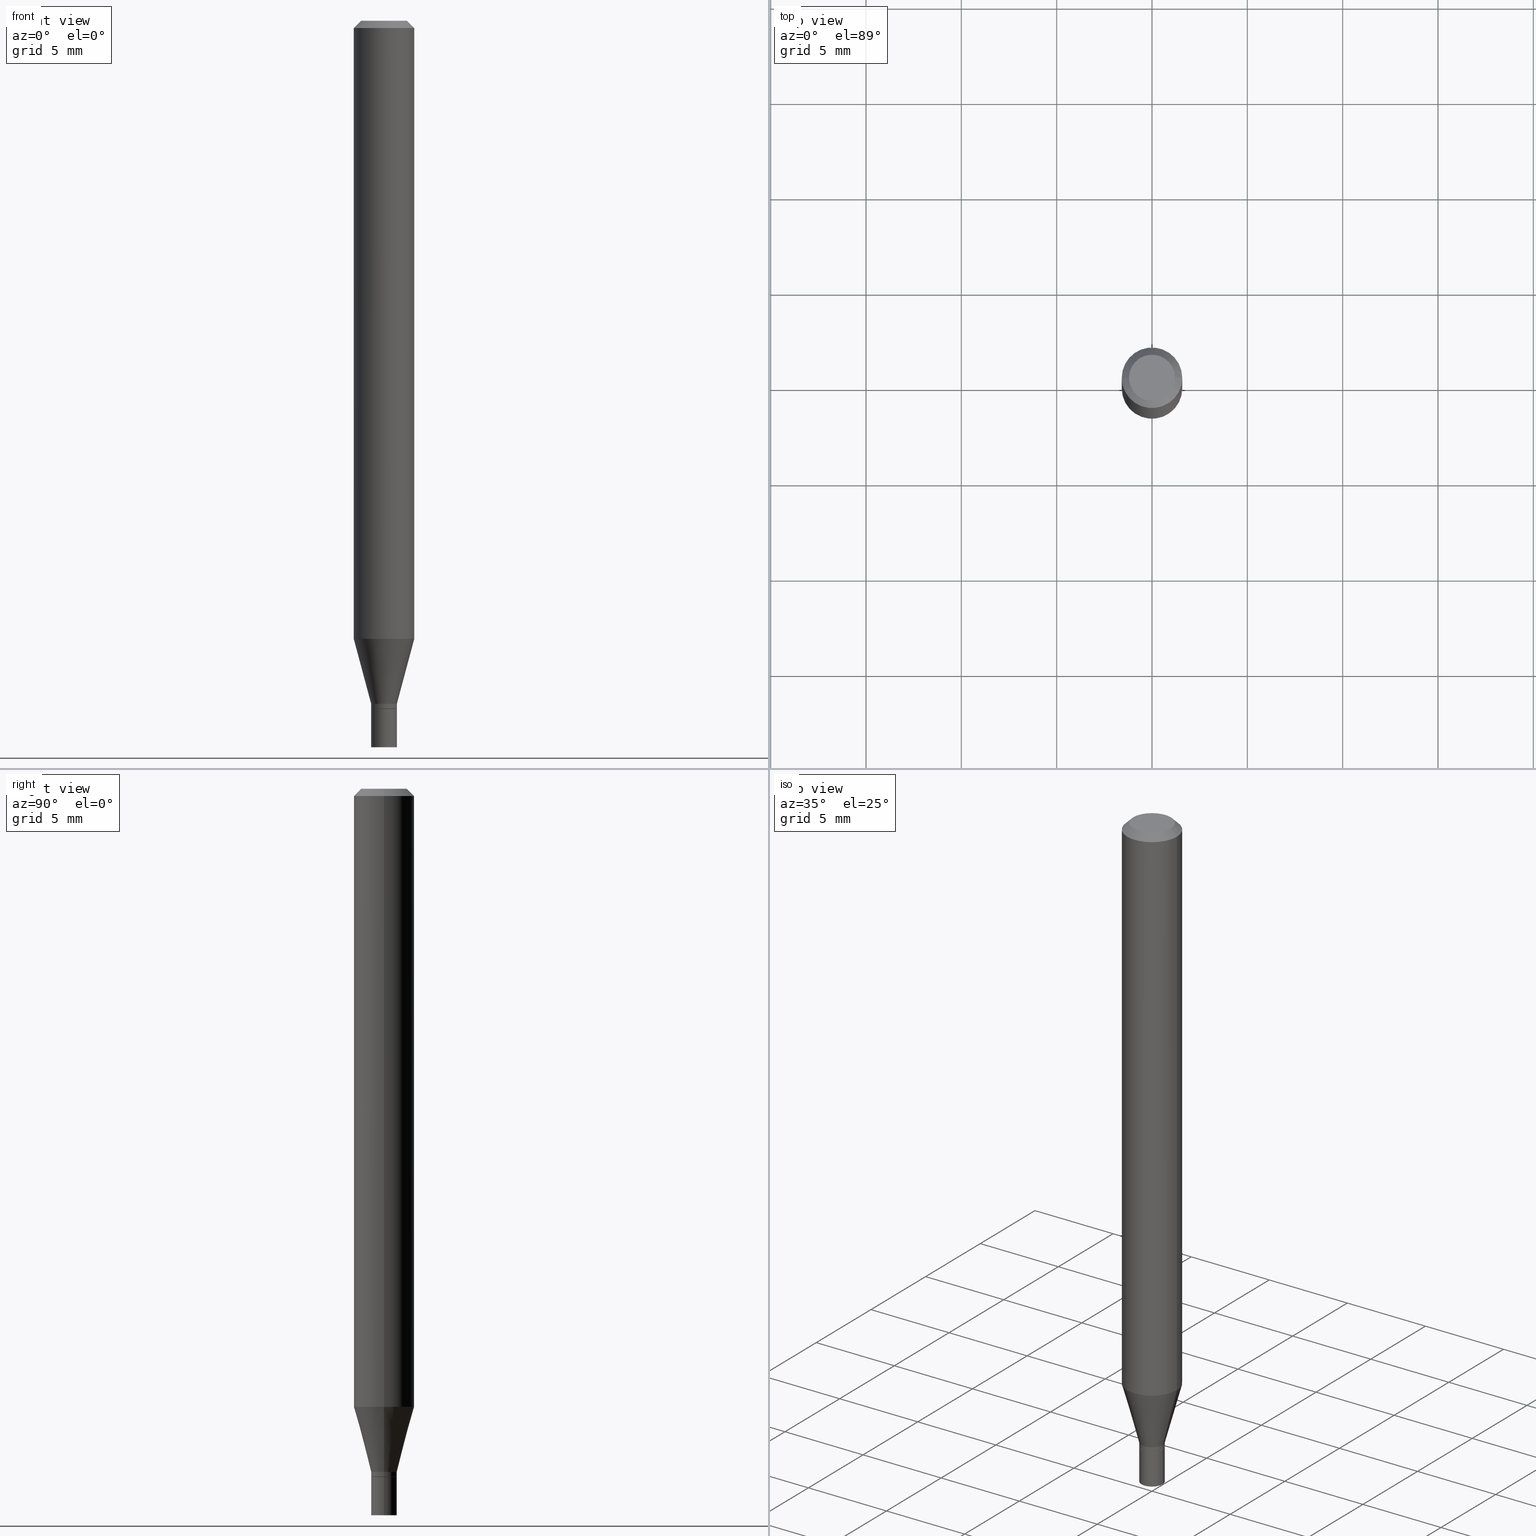
[diagram: canonical four-view strip — front | top / right | iso, engineering-drawing reading convention]
A machine part, canonical four-view strip (front | top / right | iso — engineering-drawing reading convention). The complete STEP part file that produces these views, byte-faithful:
ISO-10303-21;
HEADER;
FILE_DESCRIPTION (( 'STEP AP203' ),
    '1' );
FILE_NAME ('01133.STEP',
    '2024-03-19T23:13:45',
    ( '' ),
    ( '' ),
    'SwSTEP 2.0',
    'SolidWorks 2023',
    '' );
FILE_SCHEMA (( 'CONFIG_CONTROL_DESIGN' ));
ENDSEC;

DATA;
#1 = FACE_OUTER_BOUND ( 'NONE', #322, .T. ) ;
#2 = ORIENTED_EDGE ( 'NONE', *, *, #70, .T. ) ;
#3 = ORIENTED_EDGE ( 'NONE', *, *, #446, .F. ) ;
#4 = EDGE_CURVE ( 'NONE', #60, #228, #39, .T. ) ;
#5 = CARTESIAN_POINT ( 'NONE',  ( 3.473788439185986455E-29, -4.959649241826688854E-15, -1.420500000000000096 ) ) ;
#6 = AXIS2_PLACEMENT_3D ( 'NONE', #153, #427, #136 ) ;
#7 = VECTOR ( 'NONE', #449, 39.37007874015748143 ) ;
#8 = CC_DESIGN_SECURITY_CLASSIFICATION ( #29, ( #333 ) ) ;
#9 = FACE_OUTER_BOUND ( 'NONE', #184, .T. ) ;
#10 = APPROVAL ( #183, 'UNSPECIFIED' ) ;
#11 = AXIS2_PLACEMENT_3D ( 'NONE', #330, #298, #151 ) ;
#12 = DIRECTION ( 'NONE',  ( -2.445468806185136877E-29, 3.491481338843145188E-15, 1.000000000000000000 ) ) ;
#13 = APPROVAL_PERSON_ORGANIZATION ( #461, #10, #172 ) ;
#14 = CARTESIAN_POINT ( 'NONE',  ( 3.472565704782894214E-29, -4.957903501157267351E-15, -1.420000000000000151 ) ) ;
#15 = EDGE_CURVE ( 'NONE', #448, #163, #48, .T. ) ;
#16 = CARTESIAN_POINT ( 'NONE',  ( 3.668203209277704895E-29, -5.237222008264718177E-15, -1.500000000000000222 ) ) ;
#17 = DIRECTION ( 'NONE',  ( 1.000000000000000000, -6.982962677686265922E-15, 4.876176775795935232E-29 ) ) ;
#18 = ORIENTED_EDGE ( 'NONE', *, *, #303, .F. ) ;
#19 = CARTESIAN_POINT ( 'NONE',  ( -0.04749999999999999362, 3.578768372314212971E-16, 1.370093274943958627E-16 ) ) ;
#20 = AXIS2_PLACEMENT_3D ( 'NONE', #73, #245, #450 ) ;
#21 = LINE ( 'NONE', #310, #7 ) ;
#22 = CYLINDRICAL_SURFACE ( 'NONE', #72, 0.06250000000000000000 ) ;
#23 = MANIFOLD_SOLID_BREP ( 'Body-Move/Copy2[2]', #368 ) ;
#24 = ADVANCED_FACE ( 'NONE', ( #179 ), #338, .T. ) ;
#25 = CALENDAR_DATE ( 2024, 19, 3 ) ;
#26 = DIRECTION ( 'NONE',  ( -2.445468806185136877E-29, 3.491481338843145188E-15, 1.000000000000000000 ) ) ;
#28 = DIRECTION ( 'NONE',  ( -2.445468806185136597E-29, 3.491481338843145583E-15, 1.000000000000000000 ) ) ;
#27 = AXIS2_PLACEMENT_3D ( 'NONE', #346, #276, #307 ) ;
#29 = SECURITY_CLASSIFICATION ( '', '', #149 ) ;
#30 = CARTESIAN_POINT ( 'NONE',  ( -0.02649999999999999925, -4.910141800069277982E-15, -1.420500000000000096 ) ) ;
#31 = ORIENTED_EDGE ( 'NONE', *, *, #138, .T. ) ;
#32 = ADVANCED_FACE ( 'NONE', ( #222 ), #425, .T. ) ;
#33 = ORIENTED_EDGE ( 'NONE', *, *, #226, .T. ) ;
#34 = PERSON_AND_ORGANIZATION_ROLE ( 'design_owner' ) ;
#35 = ORIENTED_EDGE ( 'NONE', *, *, #383, .T. ) ;
#36 = LINE ( 'NONE', #417, #176 ) ;
#37 = ORIENTED_EDGE ( 'NONE', *, *, #383, .F. ) ;
#38 = VERTEX_POINT ( 'NONE', #356 ) ;
#39 = CIRCLE ( 'NONE', #6, 0.04749999999999999362 ) ;
#40 = AXIS2_PLACEMENT_3D ( 'NONE', #329, #363, #188 ) ;
#41 = EDGE_CURVE ( 'NONE', #457, #376, #87, .T. ) ;
#42 = PLANE ( 'NONE',  #447 ) ;
#43 = ORIENTED_EDGE ( 'NONE', *, *, #303, .T. ) ;
#44 = CARTESIAN_POINT ( 'NONE',  ( 0.02599999999999999534, -5.141206271446531536E-15, -1.420500000000000096 ) ) ;
#45 = CARTESIAN_POINT ( 'NONE',  ( -0.06250000000000000000, 3.840629472727444916E-16, -0.01499999999999999944 ) ) ;
#46 = DIRECTION ( 'NONE',  ( -2.445468806185136877E-29, 3.491481338843145188E-15, 1.000000000000000000 ) ) ;
#47 = LINE ( 'NONE', #195, #141 ) ;
#48 = CIRCLE ( 'NONE', #80, 0.02649999999999999925 ) ;
#49 = CONICAL_SURFACE ( 'NONE', #345, 0.02599999999999999534, 0.7853981633974739252 ) ;
#50 = EDGE_CURVE ( 'NONE', #255, #51, #47, .T. ) ;
#51 = VERTEX_POINT ( 'NONE', #272 ) ;
#52 = ORIENTED_EDGE ( 'NONE', *, *, #117, .T. ) ;
#53 = CARTESIAN_POINT ( 'NONE',  ( -0.02649999999999999925, 1.882938249764265439E-16, -1.303517798917549926E-30 ) ) ;
#54 = DIRECTION ( 'NONE',  ( 1.000000000000000000, -6.982962677686267499E-15, 4.852736867747366768E-29 ) ) ;
#55 = CONICAL_SURFACE ( 'NONE', #416, 0.06250000000000000000, 0.7853981633974438381 ) ;
#56 = CIRCLE ( 'NONE', #325, 0.02649999999999992292 ) ;
#57 = LOCAL_TIME ( 19, 13, 45.00000000000000000, #64 ) ;
#58 = CARTESIAN_POINT ( 'NONE',  ( 3.316907271900976096E-16, 0.04749999999999999362, -9.734069984785028182E-17 ) ) ;
#59 = EDGE_LOOP ( 'NONE', ( #115, #31, #157, #377 ) ) ;
#60 = VERTEX_POINT ( 'NONE', #19 ) ;
#61 = DIRECTION ( 'NONE',  ( 1.000000000000000000, -6.982962677686261189E-15, 0.000000000000000000 ) ) ;
#62 = DIRECTION ( 'NONE',  ( 1.000000000000000000, -6.982962677686261189E-15, 0.000000000000000000 ) ) ;
#63 = ADVANCED_FACE ( 'NONE', ( #93 ), #239, .F. ) ;
#64 = COORDINATED_UNIVERSAL_TIME_OFFSET ( 5, 0, .BEHIND. ) ;
#65 = LINE ( 'NONE', #351, #205 ) ;
#66 = DIRECTION ( 'NONE',  ( 1.000000000000000000, -6.982962677686261189E-15, 0.000000000000000000 ) ) ;
#67 = APPROVAL_DATE_TIME ( #384, #440 ) ;
#68 = EDGE_LOOP ( 'NONE', ( #290, #263, #131, #215 ) ) ;
#69 = CARTESIAN_POINT ( 'NONE',  ( -0.02649999999999992292, -4.736440603461831672E-15, -1.410500000000000087 ) ) ;
#70 = EDGE_CURVE ( 'NONE', #448, #291, #134, .T. ) ;
#71 = PERSON_AND_ORGANIZATION ( #408, #441 ) ;
#72 = AXIS2_PLACEMENT_3D ( 'NONE', #391, #219, #100 ) ;
#73 = CARTESIAN_POINT ( 'NONE',  ( 3.473788439185986455E-29, -4.959649241826688854E-15, -1.420500000000000096 ) ) ;
#74 = DATE_AND_TIME ( #317, #206 ) ;
#75 = ORIENTED_EDGE ( 'NONE', *, *, #122, .F. ) ;
#76 = DIRECTION ( 'NONE',  ( -2.445468806185136597E-29, 3.491481338843145583E-15, 1.000000000000000000 ) ) ;
#77 = DIRECTION ( 'NONE',  ( -2.445468806185136597E-29, 3.491481338843145583E-15, 1.000000000000000000 ) ) ;
#78 = VERTEX_POINT ( 'NONE', #378 ) ;
#79 = LENGTH_MEASURE_WITH_UNIT ( LENGTH_MEASURE( 0.02539999999999999897 ), #116 );
#80 = AXIS2_PLACEMENT_3D ( 'NONE', #308, #109, #390 ) ;
#81 = AXIS2_PLACEMENT_3D ( 'NONE', #139, #132, #94 ) ;
#82 =( NAMED_UNIT ( * ) PLANE_ANGLE_UNIT ( ) SI_UNIT ( $, .RADIAN. ) );
#83 = EDGE_LOOP ( 'NONE', ( #275, #343, #223, #261 ) ) ;
#84 = CARTESIAN_POINT ( 'NONE',  ( -0.02649999999999999925, -4.910141800069277982E-15, -1.500000000000000222 ) ) ;
#85 = EDGE_CURVE ( 'NONE', #51, #125, #171, .T. ) ;
#86 = CARTESIAN_POINT ( 'NONE',  ( 0.06250000000000000000, -4.364351673553916694E-16, 3.047610484872459871E-30 ) ) ;
#87 = CIRCLE ( 'NONE', #150, 0.06250000000000000000 ) ;
#88 = AXIS2_PLACEMENT_3D ( 'NONE', #405, #167, #17 ) ;
#89 = FACE_OUTER_BOUND ( 'NONE', #421, .T. ) ;
#90 = ADVANCED_FACE ( 'NONE', ( #406 ), #341, .T. ) ;
#91 = CARTESIAN_POINT ( 'NONE',  ( 0.02649999999999999925, -5.422270519223404655E-15, -1.500000000000000222 ) ) ;
#92 = VECTOR ( 'NONE', #46, 39.37007874015748143 ) ;
#93 = FACE_OUTER_BOUND ( 'NONE', #148, .T. ) ;
#94 = DIRECTION ( 'NONE',  ( 1.000000000000000000, -6.982962677686265922E-15, 4.876176775795935232E-29 ) ) ;
#95 = FACE_OUTER_BOUND ( 'NONE', #59, .T. ) ;
#96 = ORIENTED_EDGE ( 'NONE', *, *, #186, .F. ) ;
#97 = ADVANCED_FACE ( 'NONE', ( #130 ), #55, .T. ) ;
#98 = CARTESIAN_POINT ( 'NONE',  ( 3.449333751124135470E-29, -4.924734428438257994E-15, -1.410500000000000087 ) ) ;
#99 = AXIS2_PLACEMENT_3D ( 'NONE', #349, #180, #424 ) ;
#100 = DIRECTION ( 'NONE',  ( 1.000000000000000000, -6.982962677686266711E-15, 4.876176775795935793E-29 ) ) ;
#101 = PERSON_AND_ORGANIZATION_ROLE ( 'design_supplier' ) ;
#102 = DIRECTION ( 'NONE',  ( -2.445468806185136877E-29, 3.491481338843145188E-15, 1.000000000000000000 ) ) ;
#103 = DIRECTION ( 'NONE',  ( -2.445468806185136597E-29, 3.491481338843145583E-15, 1.000000000000000000 ) ) ;
#104 = EDGE_CURVE ( 'NONE', #119, #38, #273, .T. ) ;
#105 = DATE_AND_TIME ( #25, #396 ) ;
#106 = ORIENTED_EDGE ( 'NONE', *, *, #432, .F. ) ;
#107 = PERSON_AND_ORGANIZATION ( #408, #441 ) ;
#109 = DIRECTION ( 'NONE',  ( -2.445468806185136597E-29, 3.491481338843145583E-15, 1.000000000000000000 ) ) ;
#108 = AXIS2_PLACEMENT_3D ( 'NONE', #259, #76, #294 ) ;
#110 = DIRECTION ( 'NONE',  ( -2.445468806185136877E-29, 3.491481338843145188E-15, 1.000000000000000000 ) ) ;
#111 = ORIENTED_EDGE ( 'NONE', *, *, #209, .T. ) ;
#112 = CARTESIAN_POINT ( 'NONE',  ( 3.473788439185986455E-29, -4.959649241826688854E-15, -1.420500000000000096 ) ) ;
#113 = ORIENTED_EDGE ( 'NONE', *, *, #353, .F. ) ;
#114 = DIRECTION ( 'NONE',  ( -2.445468806185136597E-29, 3.491481338843145583E-15, 1.000000000000000000 ) ) ;
#115 = ORIENTED_EDGE ( 'NONE', *, *, #286, .F. ) ;
#116 =( LENGTH_UNIT ( ) NAMED_UNIT ( * ) SI_UNIT ( $, .METRE. ) );
#117 = EDGE_CURVE ( 'NONE', #163, #448, #280, .T. ) ;
#118 = VECTOR ( 'NONE', #352, 39.37007874015748143 ) ;
#119 = VERTEX_POINT ( 'NONE', #375 ) ;
#120 = CYLINDRICAL_SURFACE ( 'NONE', #40, 0.02649999999999999925 ) ;
#121 = EDGE_LOOP ( 'NONE', ( #370, #253, #43, #238 ) ) ;
#122 = EDGE_CURVE ( 'NONE', #255, #38, #161, .T. ) ;
#123 = MECHANICAL_CONTEXT ( 'NONE', #462, 'mechanical' ) ;
#124 = DESIGN_CONTEXT ( 'detailed design', #399, 'design' ) ;
#125 = VERTEX_POINT ( 'NONE', #382 ) ;
#126 = AXIS2_PLACEMENT_3D ( 'NONE', #98, #114, #66 ) ;
#127 = CC_DESIGN_APPROVAL ( #440, ( #29 ) ) ;
#128 = ADVANCED_FACE ( 'NONE', ( #445 ), #231, .F. ) ;
#129 = DIRECTION ( 'NONE',  ( 0.2588190451025214611, 1.565188264969620982E-15, 0.9659258262890679791 ) ) ;
#130 = FACE_OUTER_BOUND ( 'NONE', #68, .T. ) ;
#131 = ORIENTED_EDGE ( 'NONE', *, *, #379, .T. ) ;
#132 = DIRECTION ( 'NONE',  ( -2.445468806185136597E-29, 3.491481338843145583E-15, 1.000000000000000000 ) ) ;
#133 = CIRCLE ( 'NONE', #381, 0.06250000000000000000 ) ;
#134 = LINE ( 'NONE', #53, #232 ) ;
#135 = DIRECTION ( 'NONE',  ( 2.445468806185136597E-29, -3.491481338843145583E-15, -1.000000000000000000 ) ) ;
#136 = DIRECTION ( 'NONE',  ( 1.000000000000000000, -6.982962677686267499E-15, 4.852736867747366768E-29 ) ) ;
#137 = DIMENSIONAL_EXPONENTS ( 1.000000000000000000, 0.000000000000000000, 0.000000000000000000, 0.000000000000000000, 0.000000000000000000, 0.000000000000000000, 0.000000000000000000 ) ;
#138 = EDGE_CURVE ( 'NONE', #38, #255, #244, .T. ) ;
#139 = CARTESIAN_POINT ( 'NONE',  ( 0.000000000000000000, 0.000000000000000000, 0.000000000000000000 ) ) ;
#140 = DIRECTION ( 'NONE',  ( 1.000000000000000000, -6.982962677686258822E-15, 0.000000000000000000 ) ) ;
#141 = VECTOR ( 'NONE', #402, 39.37007874015748143 ) ;
#142 = ADVANCED_FACE ( 'NONE', ( #95 ), #203, .T. ) ;
#143 = PERSON_AND_ORGANIZATION ( #408, #441 ) ;
#144 = ORIENTED_EDGE ( 'NONE', *, *, #104, .T. ) ;
#145 = DIRECTION ( 'NONE',  ( -2.445468806185136597E-29, 3.491481338843145583E-15, 1.000000000000000000 ) ) ;
#146 = CALENDAR_DATE ( 2024, 19, 3 ) ;
#147 = EDGE_LOOP ( 'NONE', ( #168, #256, #392, #187 ) ) ;
#148 = EDGE_LOOP ( 'NONE', ( #220, #397 ) ) ;
#149 = SECURITY_CLASSIFICATION_LEVEL ( 'unclassified' ) ;
#150 = AXIS2_PLACEMENT_3D ( 'NONE', #364, #28, #454 ) ;
#151 = DIRECTION ( 'NONE',  ( 1.000000000000000000, 0.000000000000000000, 0.000000000000000000 ) ) ;
#153 = CARTESIAN_POINT ( 'NONE',  ( -3.350520365439544480E-45, 4.783655101941405986E-31, 1.370093274943982539E-16 ) ) ;
#152 = AXIS2_PLACEMENT_3D ( 'NONE', #16, #274, #165 ) ;
#154 = LINE ( 'NONE', #289, #403 ) ;
#155 = VERTEX_POINT ( 'NONE', #407 ) ;
#156 = CC_DESIGN_PERSON_AND_ORGANIZATION_ASSIGNMENT ( #71, #284, ( #29 ) ) ;
#157 = ORIENTED_EDGE ( 'NONE', *, *, #50, .T. ) ;
#158 = ORIENTED_EDGE ( 'NONE', *, *, #393, .F. ) ;
#159 = ORIENTED_EDGE ( 'NONE', *, *, #398, .T. ) ;
#160 = CARTESIAN_POINT ( 'NONE',  ( -0.06250000000000000000, -1.809917170906047524E-15, -0.01499999999999999944 ) ) ;
#161 = CIRCLE ( 'NONE', #197, 0.02649999999999992292 ) ;
#162 = CYLINDRICAL_SURFACE ( 'NONE', #170, 0.06250000000000000000 ) ;
#163 = VERTEX_POINT ( 'NONE', #91 ) ;
#164 = CIRCLE ( 'NONE', #233, 0.02649999999999992292 ) ;
#165 = DIRECTION ( 'NONE',  ( 1.000000000000000000, -6.982962677686277755E-15, 0.000000000000000000 ) ) ;
#166 = ORIENTED_EDGE ( 'NONE', *, *, #337, .T. ) ;
#167 = DIRECTION ( 'NONE',  ( -2.445468806185136597E-29, 3.491481338843145583E-15, 1.000000000000000000 ) ) ;
#168 = ORIENTED_EDGE ( 'NONE', *, *, #393, .T. ) ;
#169 = AXIS2_PLACEMENT_3D ( 'NONE', #361, #77, #318 ) ;
#170 = AXIS2_PLACEMENT_3D ( 'NONE', #229, #191, #299 ) ;
#171 = LINE ( 'NONE', #443, #438 ) ;
#172 = APPROVAL_ROLE ( '' ) ;
#173 = CARTESIAN_POINT ( 'NONE',  ( 1.850485109587207688E-16, 0.02649999999999503794, -1.420500000000000096 ) ) ;
#174 = EDGE_CURVE ( 'NONE', #249, #51, #56, .T. ) ;
#175 = DATE_AND_TIME ( #453, #281 ) ;
#176 = VECTOR ( 'NONE', #110, 39.37007874015748143 ) ;
#177 = COORDINATED_UNIVERSAL_TIME_OFFSET ( 5, 0, .BEHIND. ) ;
#178 = CARTESIAN_POINT ( 'NONE',  ( 3.449333751124135470E-29, -4.924734428438257994E-15, -1.410500000000000087 ) ) ;
#179 = FACE_OUTER_BOUND ( 'NONE', #83, .T. ) ;
#180 = DIRECTION ( 'NONE',  ( -2.445468806185136597E-29, 3.491481338843145583E-15, 1.000000000000000000 ) ) ;
#181 = APPLICATION_PROTOCOL_DEFINITION ( 'international standard', 'config_control_design', 1994, #399 ) ;
#182 = ORIENTED_EDGE ( 'NONE', *, *, #404, .T. ) ;
#183 = APPROVAL_STATUS ( 'not_yet_approved' ) ;
#184 = EDGE_LOOP ( 'NONE', ( #52, #2, #367, #269 ) ) ;
#185 = DIRECTION ( 'NONE',  ( 1.000000000000000000, -6.982962677686262766E-15, 0.000000000000000000 ) ) ;
#186 = EDGE_CURVE ( 'NONE', #228, #60, #452, .T. ) ;
#187 = ORIENTED_EDGE ( 'NONE', *, *, #85, .F. ) ;
#188 = DIRECTION ( 'NONE',  ( 1.000000000000000000, -6.982962677686266711E-15, 4.876176775795935793E-29 ) ) ;
#190 = ORIENTED_EDGE ( 'NONE', *, *, #186, .T. ) ;
#189 = AXIS2_PLACEMENT_3D ( 'NONE', #112, #332, #429 ) ;
#191 = DIRECTION ( 'NONE',  ( -2.445468806185136597E-29, 3.491481338843145583E-15, 1.000000000000000000 ) ) ;
#192 = ADVANCED_FACE ( 'NONE', ( #442 ), #444, .T. ) ;
#193 = APPLICATION_PROTOCOL_DEFINITION ( 'international standard', 'config_control_design', 1994, #462 ) ;
#194 = AXIS2_PLACEMENT_3D ( 'NONE', #419, #103, #323 ) ;
#195 = CARTESIAN_POINT ( 'NONE',  ( 0.02649999999999992292, -1.850485109586855166E-16, 1.292186845585919104E-30 ) ) ;
#196 = ADVANCED_FACE ( 'NONE', ( #89 ), #339, .T. ) ;
#197 = AXIS2_PLACEMENT_3D ( 'NONE', #14, #240, #304 ) ;
#198 = CARTESIAN_POINT ( 'NONE',  ( 3.449333751124135470E-29, -4.924734428438257994E-15, -1.410500000000000087 ) ) ;
#199 = DIRECTION ( 'NONE',  ( 2.438088387897960049E-29, -3.491481338843145188E-15, -1.000000000000000000 ) ) ;
#200 = ORIENTED_EDGE ( 'NONE', *, *, #50, .F. ) ;
#201 = PRODUCT_DEFINITION ( 'UNKNOWN', '', #333, #124 ) ;
#202 = EDGE_LOOP ( 'NONE', ( #106, #113 ) ) ;
#203 = CYLINDRICAL_SURFACE ( 'NONE', #81, 0.02649999999999992292 ) ;
#204 = AXIS2_PLACEMENT_3D ( 'NONE', #309, #267, #306 ) ;
#205 = VECTOR ( 'NONE', #102, 39.37007874015748143 ) ;
#206 = LOCAL_TIME ( 19, 13, 45.00000000000000000, #177 ) ;
#207 = DATE_TIME_ROLE ( 'creation_date' ) ;
#208 = PLANE ( 'NONE',  #214 ) ;
#209 = EDGE_CURVE ( 'NONE', #228, #376, #21, .T. ) ;
#210 = APPROVAL_DATE_TIME ( #282, #236 ) ;
#211 = DIRECTION ( 'NONE',  ( -2.445468806185136597E-29, 3.491481338843145583E-15, 1.000000000000000000 ) ) ;
#212 = DIRECTION ( 'NONE',  ( 1.000000000000000000, -6.982962677686258822E-15, 0.000000000000000000 ) ) ;
#213 = PRODUCT ( '01133', '01133', '', ( #123 ) ) ;
#214 = AXIS2_PLACEMENT_3D ( 'NONE', #173, #312, #315 ) ;
#215 = ORIENTED_EDGE ( 'NONE', *, *, #41, .T. ) ;
#216 = CARTESIAN_POINT ( 'NONE',  ( 3.473788439185986455E-29, -4.959649241826688854E-15, -1.420500000000000096 ) ) ;
#217 = EDGE_LOOP ( 'NONE', ( #159, #35, #358, #3 ) ) ;
#218 = ADVANCED_FACE ( 'NONE', ( #413 ), #316, .T. ) ;
#219 = DIRECTION ( 'NONE',  ( -2.445468806185136597E-29, 3.491481338843145583E-15, 1.000000000000000000 ) ) ;
#220 = ORIENTED_EDGE ( 'NONE', *, *, #117, .F. ) ;
#221 = FACE_OUTER_BOUND ( 'NONE', #202, .T. ) ;
#222 = FACE_OUTER_BOUND ( 'NONE', #423, .T. ) ;
#223 = ORIENTED_EDGE ( 'NONE', *, *, #85, .T. ) ;
#224 =( GEOMETRIC_REPRESENTATION_CONTEXT ( 3 ) GLOBAL_UNCERTAINTY_ASSIGNED_CONTEXT ( ( #369 ) ) GLOBAL_UNIT_ASSIGNED_CONTEXT ( ( #254, #82, #437 ) ) REPRESENTATION_CONTEXT ( 'NONE', 'WORKASPACE' ) );
#225 = CARTESIAN_POINT ( 'NONE',  ( 3.473788439185986455E-29, -4.959649241826688854E-15, -1.420500000000000096 ) ) ;
#226 = EDGE_CURVE ( 'NONE', #155, #291, #251, .T. ) ;
#227 = DIRECTION ( 'NONE',  ( 1.000000000000000000, -6.982962677686261189E-15, 0.000000000000000000 ) ) ;
#228 = VERTEX_POINT ( 'NONE', #292 ) ;
#229 = CARTESIAN_POINT ( 'NONE',  ( 0.000000000000000000, 0.000000000000000000, 0.000000000000000000 ) ) ;
#230 = CC_DESIGN_PERSON_AND_ORGANIZATION_ASSIGNMENT ( #143, #277, ( #333 ) ) ;
#231 = PLANE ( 'NONE',  #258 ) ;
#232 = VECTOR ( 'NONE', #12, 39.37007874015748143 ) ;
#233 = AXIS2_PLACEMENT_3D ( 'NONE', #178, #436, #227 ) ;
#234 = DIRECTION ( 'NONE',  ( -1.000000000000000000, 6.982962677686266711E-15, 0.000000000000000000 ) ) ;
#235 = APPROVAL_PERSON_ORGANIZATION ( #314, #440, #247 ) ;
#236 = APPROVAL ( #456, 'UNSPECIFIED' ) ;
#237 = DIRECTION ( 'NONE',  ( -2.445468806185136597E-29, 3.491481338843145583E-15, 1.000000000000000000 ) ) ;
#238 = ORIENTED_EDGE ( 'NONE', *, *, #138, .F. ) ;
#239 = PLANE ( 'NONE',  #204 ) ;
#240 = DIRECTION ( 'NONE',  ( -2.445468806185136597E-29, 3.491481338843145583E-15, 1.000000000000000000 ) ) ;
#241 = DIRECTION ( 'NONE',  ( -2.445468806185136597E-29, 3.491481338843145583E-15, 1.000000000000000000 ) ) ;
#242 = PERSON_AND_ORGANIZATION_ROLE ( 'creator' ) ;
#243 = DIRECTION ( 'NONE',  ( 1.000000000000000000, -6.982962677686266711E-15, 4.876176775795935793E-29 ) ) ;
#244 = CIRCLE ( 'NONE', #426, 0.02649999999999992292 ) ;
#245 = DIRECTION ( 'NONE',  ( -2.445468806185136597E-29, 3.491481338843145583E-15, 1.000000000000000000 ) ) ;
#246 = CC_DESIGN_DATE_AND_TIME_ASSIGNMENT ( #74, #207, ( #201 ) ) ;
#247 = APPROVAL_ROLE ( '' ) ;
#248 = DATE_TIME_ROLE ( 'classification_date' ) ;
#249 = VERTEX_POINT ( 'NONE', #283 ) ;
#250 = LINE ( 'NONE', #357, #439 ) ;
#251 = CIRCLE ( 'NONE', #20, 0.02649999999999999925 ) ;
#252 = CALENDAR_DATE ( 2024, 19, 3 ) ;
#253 = ORIENTED_EDGE ( 'NONE', *, *, #353, .T. ) ;
#254 =( CONVERSION_BASED_UNIT ( 'INCH', #79 ) LENGTH_UNIT ( ) NAMED_UNIT ( #137 ) );
#255 = VERTEX_POINT ( 'NONE', #359 ) ;
#256 = ORIENTED_EDGE ( 'NONE', *, *, #257, .T. ) ;
#257 = EDGE_CURVE ( 'NONE', #249, #78, #458, .T. ) ;
#258 = AXIS2_PLACEMENT_3D ( 'NONE', #58, #199, #270 ) ;
#259 = CARTESIAN_POINT ( 'NONE',  ( 3.120775653135857789E-29, -4.455640541429573595E-15, -1.276146170927520584 ) ) ;
#260 = APPROVAL_PERSON_ORGANIZATION ( #385, #236, #451 ) ;
#261 = ORIENTED_EDGE ( 'NONE', *, *, #337, .F. ) ;
#262 = DIRECTION ( 'NONE',  ( -2.445468806185136597E-29, 3.491481338843145583E-15, 1.000000000000000000 ) ) ;
#263 = ORIENTED_EDGE ( 'NONE', *, *, #4, .F. ) ;
#264 = DIRECTION ( 'NONE',  ( 1.000000000000000000, -6.982962677686258822E-15, 0.000000000000000000 ) ) ;
#265 = CC_DESIGN_PERSON_AND_ORGANIZATION_ASSIGNMENT ( #350, #242, ( #201 ) ) ;
#266 = AXIS2_PLACEMENT_3D ( 'NONE', #342, #335, #54 ) ;
#267 = DIRECTION ( 'NONE',  ( -2.438088387897960049E-29, 3.491481338843145188E-15, 1.000000000000000000 ) ) ;
#268 = CARTESIAN_POINT ( 'NONE',  ( -0.02599999999999999534, -4.774908130529062642E-15, -1.420500000000000096 ) ) ;
#269 = ORIENTED_EDGE ( 'NONE', *, *, #328, .F. ) ;
#270 = DIRECTION ( 'NONE',  ( -1.000000000000000000, 6.982962677686265922E-15, -4.876176775795935793E-29 ) ) ;
#271 = ORIENTED_EDGE ( 'NONE', *, *, #432, .T. ) ;
#272 = CARTESIAN_POINT ( 'NONE',  ( 0.02649999999999992292, -5.109782939396942894E-15, -1.410500000000000087 ) ) ;
#273 = LINE ( 'NONE', #268, #464 ) ;
#274 = DIRECTION ( 'NONE',  ( -2.445468806185136597E-29, 3.491481338843145583E-15, 1.000000000000000000 ) ) ;
#275 = ORIENTED_EDGE ( 'NONE', *, *, #257, .F. ) ;
#276 = DIRECTION ( 'NONE',  ( 2.445468806185136597E-29, -3.491481338843145583E-15, -1.000000000000000000 ) ) ;
#277 = PERSON_AND_ORGANIZATION_ROLE ( 'creator' ) ;
#278 = DIRECTION ( 'NONE',  ( 0.7071067811865656694, -2.468850131082446387E-15, 0.7071067811865294761 ) ) ;
#279 = CLOSED_SHELL ( 'NONE', ( #410, #63, #90, #371 ) ) ;
#280 = CIRCLE ( 'NONE', #152, 0.02649999999999999925 ) ;
#281 = LOCAL_TIME ( 19, 13, 45.00000000000000000, #418 ) ;
#282 = DATE_AND_TIME ( #146, #57 ) ;
#283 = CARTESIAN_POINT ( 'NONE',  ( -0.02649999999999992292, -4.373995967520671326E-15, -1.410500000000000087 ) ) ;
#284 = PERSON_AND_ORGANIZATION_ROLE ( 'classification_officer' ) ;
#285 = FACE_OUTER_BOUND ( 'NONE', #428, .T. ) ;
#286 = EDGE_CURVE ( 'NONE', #38, #249, #250, .T. ) ;
#287 = CARTESIAN_POINT ( 'NONE',  ( 0.000000000000000000, 0.000000000000000000, 0.000000000000000000 ) ) ;
#288 = ORIENTED_EDGE ( 'NONE', *, *, #311, .T. ) ;
#289 = CARTESIAN_POINT ( 'NONE',  ( 0.02599999999999999534, -5.141206271446531536E-15, -1.420500000000000096 ) ) ;
#290 = ORIENTED_EDGE ( 'NONE', *, *, #209, .F. ) ;
#291 = VERTEX_POINT ( 'NONE', #30 ) ;
#292 = CARTESIAN_POINT ( 'NONE',  ( 0.04749999999999999362, -4.035134999187576158E-16, 1.370093274944008177E-16 ) ) ;
#293 = ORIENTED_EDGE ( 'NONE', *, *, #70, .F. ) ;
#294 = DIRECTION ( 'NONE',  ( 1.000000000000000000, -6.982962677686262766E-15, 0.000000000000000000 ) ) ;
#295 = ORIENTED_EDGE ( 'NONE', *, *, #328, .T. ) ;
#296 = AXIS2_PLACEMENT_3D ( 'NONE', #412, #241, #212 ) ;
#297 = CIRCLE ( 'NONE', #108, 0.06250000000000000000 ) ;
#298 = DIRECTION ( 'NONE',  ( 0.000000000000000000, 0.000000000000000000, 1.000000000000000000 ) ) ;
#299 = DIRECTION ( 'NONE',  ( 1.000000000000000000, -6.982962677686266711E-15, 4.876176775795935793E-29 ) ) ;
#300 = ADVANCED_FACE ( 'NONE', ( #394 ), #49, .T. ) ;
#301 = PERSON_AND_ORGANIZATION ( #408, #441 ) ;
#302 = DIRECTION ( 'NONE',  ( -2.445468806185136597E-29, 3.491481338843145583E-15, 1.000000000000000000 ) ) ;
#303 = EDGE_CURVE ( 'NONE', #460, #255, #154, .T. ) ;
#304 = DIRECTION ( 'NONE',  ( 1.000000000000000000, -6.982962677686261189E-15, 0.000000000000000000 ) ) ;
#305 = CARTESIAN_POINT ( 'NONE',  ( 3.668203209277705088E-31, -5.237222008264718399E-17, -0.01499999999999999944 ) ) ;
#306 = DIRECTION ( 'NONE',  ( 1.000000000000000000, -6.982962677686265922E-15, 4.876176775795935793E-29 ) ) ;
#307 = DIRECTION ( 'NONE',  ( -1.000000000000000000, 6.982962677686266711E-15, 0.000000000000000000 ) ) ;
#308 = CARTESIAN_POINT ( 'NONE',  ( 3.668203209277704895E-29, -5.237222008264718177E-15, -1.500000000000000222 ) ) ;
#309 = CARTESIAN_POINT ( 'NONE',  ( 3.584916967085606921E-29, -5.356492647442320375E-15, -1.500000000000000222 ) ) ;
#310 = CARTESIAN_POINT ( 'NONE',  ( 0.06250000000000000000, -4.811533449433679005E-16, -0.01499999999999999944 ) ) ;
#311 = EDGE_CURVE ( 'NONE', #376, #457, #331, .T. ) ;
#312 = DIRECTION ( 'NONE',  ( 2.438088387897960049E-29, -3.491481338843145188E-15, -1.000000000000000000 ) ) ;
#313 = DIRECTION ( 'NONE',  ( -2.445468806185136597E-29, 3.491481338843145583E-15, 1.000000000000000000 ) ) ;
#314 = PERSON_AND_ORGANIZATION ( #408, #441 ) ;
#315 = DIRECTION ( 'NONE',  ( -1.000000000000000000, 6.982962677686265922E-15, -4.876176775795935793E-29 ) ) ;
#316 = CONICAL_SURFACE ( 'NONE', #126, 0.02649999999999992292, 0.2617993877991501850 ) ;
#317 = CALENDAR_DATE ( 2024, 19, 3 ) ;
#318 = DIRECTION ( 'NONE',  ( 1.000000000000000000, -6.982962677686261189E-15, 0.000000000000000000 ) ) ;
#319 = CC_DESIGN_PERSON_AND_ORGANIZATION_ASSIGNMENT ( #107, #101, ( #333 ) ) ;
#320 = ORIENTED_EDGE ( 'NONE', *, *, #15, .T. ) ;
#321 = APPROVAL_DATE_TIME ( #175, #10 ) ;
#322 = EDGE_LOOP ( 'NONE', ( #37, #166, #327, #386 ) ) ;
#323 = DIRECTION ( 'NONE',  ( 1.000000000000000000, -6.982962677686258822E-15, 0.000000000000000000 ) ) ;
#324 = EDGE_LOOP ( 'NONE', ( #336, #190 ) ) ;
#325 = AXIS2_PLACEMENT_3D ( 'NONE', #198, #237, #62 ) ;
#326 = LINE ( 'NONE', #86, #92 ) ;
#327 = ORIENTED_EDGE ( 'NONE', *, *, #446, .T. ) ;
#328 = EDGE_CURVE ( 'NONE', #163, #155, #36, .T. ) ;
#329 = CARTESIAN_POINT ( 'NONE',  ( 0.000000000000000000, 0.000000000000000000, 0.000000000000000000 ) ) ;
#330 = CARTESIAN_POINT ( 'NONE',  ( 0.000000000000000000, 0.000000000000000000, 0.000000000000000000 ) ) ;
#331 = CIRCLE ( 'NONE', #99, 0.06250000000000000000 ) ;
#332 = DIRECTION ( 'NONE',  ( -2.445468806185136597E-29, 3.491481338843145583E-15, 1.000000000000000000 ) ) ;
#333 = PRODUCT_DEFINITION_FORMATION_WITH_SPECIFIED_SOURCE ( 'ANY', '', #213, .NOT_KNOWN. ) ;
#334 = ADVANCED_FACE ( 'NONE', ( #455 ), #22, .T. ) ;
#335 = DIRECTION ( 'NONE',  ( -2.445468806185136597E-29, 3.491481338843145583E-15, 1.000000000000000000 ) ) ;
#336 = ORIENTED_EDGE ( 'NONE', *, *, #4, .T. ) ;
#337 = EDGE_CURVE ( 'NONE', #78, #125, #133, .T. ) ;
#338 = CONICAL_SURFACE ( 'NONE', #169, 0.02649999999999992292, 0.2617993877991501850 ) ;
#339 = CONICAL_SURFACE ( 'NONE', #27, 0.06250000000000000000, 0.7853981633974438381 ) ;
#340 = ORIENTED_EDGE ( 'NONE', *, *, #404, .F. ) ;
#341 = CYLINDRICAL_SURFACE ( 'NONE', #366, 0.02649999999999999925 ) ;
#342 = CARTESIAN_POINT ( 'NONE',  ( -3.350520365439544480E-45, 4.783655101941405986E-31, 1.370093274943982539E-16 ) ) ;
#343 = ORIENTED_EDGE ( 'NONE', *, *, #174, .T. ) ;
#344 = MANIFOLD_SOLID_BREP ( 'Body-Move/Copy2[1]', #279 ) ;
#345 = AXIS2_PLACEMENT_3D ( 'NONE', #216, #211, #140 ) ;
#346 = CARTESIAN_POINT ( 'NONE',  ( 3.668203209277705088E-31, -5.237222008264718399E-17, -0.01499999999999999944 ) ) ;
#347 = CC_DESIGN_PERSON_AND_ORGANIZATION_ASSIGNMENT ( #301, #34, ( #213 ) ) ;
#348 = CC_DESIGN_APPROVAL ( #10, ( #333 ) ) ;
#349 = CARTESIAN_POINT ( 'NONE',  ( 3.668203209277705088E-31, -5.237222008264718399E-17, -0.01499999999999999944 ) ) ;
#350 = PERSON_AND_ORGANIZATION ( #408, #441 ) ;
#351 = CARTESIAN_POINT ( 'NONE',  ( -0.06250000000000000000, 4.440892098500626162E-16, -3.074334431409316114E-30 ) ) ;
#352 = DIRECTION ( 'NONE',  ( -0.2588190451025214611, 5.211531920934550253E-15, 0.9659258262890679791 ) ) ;
#353 = EDGE_CURVE ( 'NONE', #119, #460, #434, .T. ) ;
#354 = COORDINATED_UNIVERSAL_TIME_OFFSET ( 5, 0, .BEHIND. ) ;
#355 = PRODUCT_DEFINITION_SHAPE ( 'NONE', 'NONE',  #201 ) ;
#356 = CARTESIAN_POINT ( 'NONE',  ( -0.02649999999999992292, -4.769609676180841817E-15, -1.420000000000000151 ) ) ;
#357 = CARTESIAN_POINT ( 'NONE',  ( -0.02649999999999992292, 1.882938249764260016E-16, -1.303517798917546072E-30 ) ) ;
#358 = ORIENTED_EDGE ( 'NONE', *, *, #311, .F. ) ;
#359 = CARTESIAN_POINT ( 'NONE',  ( 0.02649999999999992292, -5.142952012115952251E-15, -1.420000000000000151 ) ) ;
#360 = APPROVAL_STATUS ( 'not_yet_approved' ) ;
#361 = CARTESIAN_POINT ( 'NONE',  ( 3.449333751124135470E-29, -4.924734428438257994E-15, -1.410500000000000087 ) ) ;
#362 = CARTESIAN_POINT ( 'NONE',  ( 3.120775653135857789E-29, -4.455640541429573595E-15, -1.276146170927520584 ) ) ;
#363 = DIRECTION ( 'NONE',  ( -2.445468806185136597E-29, 3.491481338843145583E-15, 1.000000000000000000 ) ) ;
#364 = CARTESIAN_POINT ( 'NONE',  ( 3.668203209277705088E-31, -5.237222008264718399E-17, -0.01499999999999999944 ) ) ;
#365 = CC_DESIGN_DATE_AND_TIME_ASSIGNMENT ( #105, #248, ( #29 ) ) ;
#366 = AXIS2_PLACEMENT_3D ( 'NONE', #287, #313, #243 ) ;
#367 = ORIENTED_EDGE ( 'NONE', *, *, #226, .F. ) ;
#368 = CLOSED_SHELL ( 'NONE', ( #192, #32, #196, #334, #218, #24, #459, #97, #128, #415, #300, #142 ) ) ;
#369 = UNCERTAINTY_MEASURE_WITH_UNIT (LENGTH_MEASURE( 1.000000000000000082E-05 ), #254, 'distance_accuracy_value', 'NONE');
#370 = ORIENTED_EDGE ( 'NONE', *, *, #104, .F. ) ;
#371 = ADVANCED_FACE ( 'NONE', ( #285 ), #208, .F. ) ;
#372 = ORIENTED_EDGE ( 'NONE', *, *, #286, .T. ) ;
#373 = AXIS2_PLACEMENT_3D ( 'NONE', #225, #262, #264 ) ;
#374 = PRODUCT_RELATED_PRODUCT_CATEGORY ( 'detail', '', ( #213 ) ) ;
#375 = CARTESIAN_POINT ( 'NONE',  ( -0.02599999999999999534, -4.772258903354952230E-15, -1.420500000000000096 ) ) ;
#376 = VERTEX_POINT ( 'NONE', #422 ) ;
#377 = ORIENTED_EDGE ( 'NONE', *, *, #174, .F. ) ;
#378 = CARTESIAN_POINT ( 'NONE',  ( -0.06250000000000000000, -4.011551331579510979E-15, -1.276146170927520584 ) ) ;
#379 = EDGE_CURVE ( 'NONE', #60, #457, #387, .T. ) ;
#380 = DIRECTION ( 'NONE',  ( -0.7071067811865656694, 7.493145998870420424E-15, 0.7071067811865294761 ) ) ;
#381 = AXIS2_PLACEMENT_3D ( 'NONE', #362, #145, #185 ) ;
#382 = CARTESIAN_POINT ( 'NONE',  ( 0.06250000000000000000, -4.892075708784966054E-15, -1.276146170927520584 ) ) ;
#383 = EDGE_CURVE ( 'NONE', #78, #457, #65, .T. ) ;
#384 = DATE_AND_TIME ( #252, #409 ) ;
#385 = PERSON_AND_ORGANIZATION ( #408, #441 ) ;
#386 = ORIENTED_EDGE ( 'NONE', *, *, #41, .F. ) ;
#387 = LINE ( 'NONE', #45, #388 ) ;
#388 = VECTOR ( 'NONE', #431, 39.37007874015748143 ) ;
#389 = SHAPE_DEFINITION_REPRESENTATION ( #355, #433 ) ;
#390 = DIRECTION ( 'NONE',  ( 1.000000000000000000, -6.982962677686277755E-15, 0.000000000000000000 ) ) ;
#391 = CARTESIAN_POINT ( 'NONE',  ( 0.000000000000000000, 0.000000000000000000, 0.000000000000000000 ) ) ;
#392 = ORIENTED_EDGE ( 'NONE', *, *, #398, .F. ) ;
#393 = EDGE_CURVE ( 'NONE', #51, #249, #164, .T. ) ;
#394 = FACE_OUTER_BOUND ( 'NONE', #121, .T. ) ;
#395 = DIRECTION ( 'NONE',  ( 1.000000000000000000, -6.982962677686265922E-15, 4.876176775795935793E-29 ) ) ;
#396 = LOCAL_TIME ( 19, 13, 45.00000000000000000, #420 ) ;
#397 = ORIENTED_EDGE ( 'NONE', *, *, #15, .F. ) ;
#398 = EDGE_CURVE ( 'NONE', #125, #78, #297, .T. ) ;
#399 = APPLICATION_CONTEXT ( 'configuration controlled 3d designs of mechanical parts and assemblies' ) ;
#400 = EDGE_LOOP ( 'NONE', ( #293, #320, #295, #340 ) ) ;
#401 = DIRECTION ( 'NONE',  ( -2.438088387897960049E-29, 3.491481338843145188E-15, 1.000000000000000000 ) ) ;
#402 = DIRECTION ( 'NONE',  ( -2.445468806185136877E-29, 3.491481338843145188E-15, 1.000000000000000000 ) ) ;
#403 = VECTOR ( 'NONE', #278, 39.37007874015748143 ) ;
#404 = EDGE_CURVE ( 'NONE', #291, #155, #465, .T. ) ;
#405 = CARTESIAN_POINT ( 'NONE',  ( 0.000000000000000000, 0.000000000000000000, 0.000000000000000000 ) ) ;
#406 = FACE_OUTER_BOUND ( 'NONE', #400, .T. ) ;
#407 = CARTESIAN_POINT ( 'NONE',  ( 0.02649999999999999925, -5.144697752785374543E-15, -1.420500000000000096 ) ) ;
#408 = PERSON ( 'UNSPECIFIED', 'UNSPECIFIED', 'UNSPECIFIED', ('UNSPECIFIED'), ('UNSPECIFIED'), ('UNSPECIFIED') ) ;
#409 = LOCAL_TIME ( 19, 13, 45.00000000000000000, #354 ) ;
#410 = ADVANCED_FACE ( 'NONE', ( #9 ), #120, .T. ) ;
#411 = CARTESIAN_POINT ( 'NONE',  ( 3.472565704782894214E-29, -4.957903501157267351E-15, -1.420000000000000151 ) ) ;
#412 = CARTESIAN_POINT ( 'NONE',  ( 3.473788439185986455E-29, -4.959649241826688854E-15, -1.420500000000000096 ) ) ;
#413 = FACE_OUTER_BOUND ( 'NONE', #147, .T. ) ;
#414 = CIRCLE ( 'NONE', #373, 0.02599999999999999534 ) ;
#415 = ADVANCED_FACE ( 'NONE', ( #221 ), #42, .F. ) ;
#416 = AXIS2_PLACEMENT_3D ( 'NONE', #305, #135, #234 ) ;
#417 = CARTESIAN_POINT ( 'NONE',  ( 0.02649999999999999925, -1.850485109586860590E-16, 1.292186845585922957E-30 ) ) ;
#418 = COORDINATED_UNIVERSAL_TIME_OFFSET ( 5, 0, .BEHIND. ) ;
#419 = CARTESIAN_POINT ( 'NONE',  ( 3.473788439185986455E-29, -4.959649241826688854E-15, -1.420500000000000096 ) ) ;
#420 = COORDINATED_UNIVERSAL_TIME_OFFSET ( 5, 0, .BEHIND. ) ;
#421 = EDGE_LOOP ( 'NONE', ( #96, #111, #288, #463 ) ) ;
#422 = CARTESIAN_POINT ( 'NONE',  ( 0.06250000000000000000, -4.888073874380388472E-16, -0.01499999999999999944 ) ) ;
#423 = EDGE_LOOP ( 'NONE', ( #271, #144, #75, #18 ) ) ;
#424 = DIRECTION ( 'NONE',  ( 1.000000000000000000, -6.982962677686266711E-15, 0.000000000000000000 ) ) ;
#425 = CONICAL_SURFACE ( 'NONE', #296, 0.02599999999999999534, 0.7853981633974739252 ) ;
#426 = AXIS2_PLACEMENT_3D ( 'NONE', #411, #302, #61 ) ;
#427 = DIRECTION ( 'NONE',  ( -2.445468806185136597E-29, 3.491481338843145583E-15, 1.000000000000000000 ) ) ;
#428 = EDGE_LOOP ( 'NONE', ( #33, #182 ) ) ;
#429 = DIRECTION ( 'NONE',  ( 1.000000000000000000, -6.982962677686277755E-15, 0.000000000000000000 ) ) ;
#430 = ORIENTED_EDGE ( 'NONE', *, *, #122, .T. ) ;
#431 = DIRECTION ( 'NONE',  ( -0.7071067811865443531, 2.468850131082223534E-15, -0.7071067811865506814 ) ) ;
#432 = EDGE_CURVE ( 'NONE', #460, #119, #414, .T. ) ;
#433 = ADVANCED_BREP_SHAPE_REPRESENTATION ( '01133', ( #344, #23, #11 ), #224 ) ;
#434 = CIRCLE ( 'NONE', #194, 0.02599999999999999534 ) ;
#435 = CC_DESIGN_APPROVAL ( #236, ( #201 ) ) ;
#436 = DIRECTION ( 'NONE',  ( -2.445468806185136597E-29, 3.491481338843145583E-15, 1.000000000000000000 ) ) ;
#437 =( NAMED_UNIT ( * ) SI_UNIT ( $, .STERADIAN. ) SOLID_ANGLE_UNIT ( ) );
#438 = VECTOR ( 'NONE', #129, 39.37007874015748143 ) ;
#439 = VECTOR ( 'NONE', #26, 39.37007874015748143 ) ;
#440 = APPROVAL ( #360, 'UNSPECIFIED' ) ;
#441 = ORGANIZATION ( 'UNSPECIFIED', 'UNSPECIFIED', '' ) ;
#442 = FACE_OUTER_BOUND ( 'NONE', #466, .T. ) ;
#443 = CARTESIAN_POINT ( 'NONE',  ( 0.02649999999999992292, -5.109782939396942894E-15, -1.410500000000000087 ) ) ;
#444 = CYLINDRICAL_SURFACE ( 'NONE', #88, 0.02649999999999992292 ) ;
#445 = FACE_OUTER_BOUND ( 'NONE', #324, .T. ) ;
#446 = EDGE_CURVE ( 'NONE', #125, #376, #326, .T. ) ;
#447 = AXIS2_PLACEMENT_3D ( 'NONE', #5, #401, #395 ) ;
#448 = VERTEX_POINT ( 'NONE', #84 ) ;
#449 = DIRECTION ( 'NONE',  ( 0.7071067811865443531, -7.319954787623245001E-15, -0.7071067811865506814 ) ) ;
#450 = DIRECTION ( 'NONE',  ( 1.000000000000000000, -6.982962677686277755E-15, 0.000000000000000000 ) ) ;
#451 = APPROVAL_ROLE ( '' ) ;
#452 = CIRCLE ( 'NONE', #266, 0.04749999999999999362 ) ;
#453 = CALENDAR_DATE ( 2024, 19, 3 ) ;
#454 = DIRECTION ( 'NONE',  ( 1.000000000000000000, -6.982962677686266711E-15, 0.000000000000000000 ) ) ;
#455 = FACE_OUTER_BOUND ( 'NONE', #217, .T. ) ;
#456 = APPROVAL_STATUS ( 'not_yet_approved' ) ;
#457 = VERTEX_POINT ( 'NONE', #160 ) ;
#458 = LINE ( 'NONE', #69, #118 ) ;
#459 = ADVANCED_FACE ( 'NONE', ( #1 ), #162, .T. ) ;
#460 = VERTEX_POINT ( 'NONE', #44 ) ;
#461 = PERSON_AND_ORGANIZATION ( #408, #441 ) ;
#462 = APPLICATION_CONTEXT ( 'configuration controlled 3d designs of mechanical parts and assemblies' ) ;
#463 = ORIENTED_EDGE ( 'NONE', *, *, #379, .F. ) ;
#464 = VECTOR ( 'NONE', #380, 39.37007874015748143 ) ;
#465 = CIRCLE ( 'NONE', #189, 0.02649999999999999925 ) ;
#466 = EDGE_LOOP ( 'NONE', ( #430, #372, #158, #200 ) ) ;
ENDSEC;
END-ISO-10303-21;
